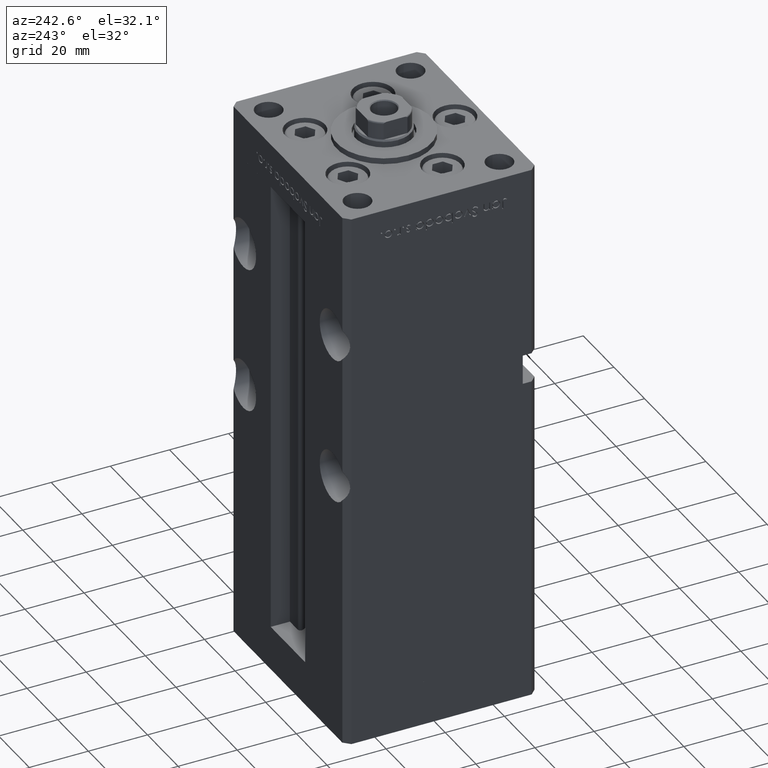
[diagram: clean part render]
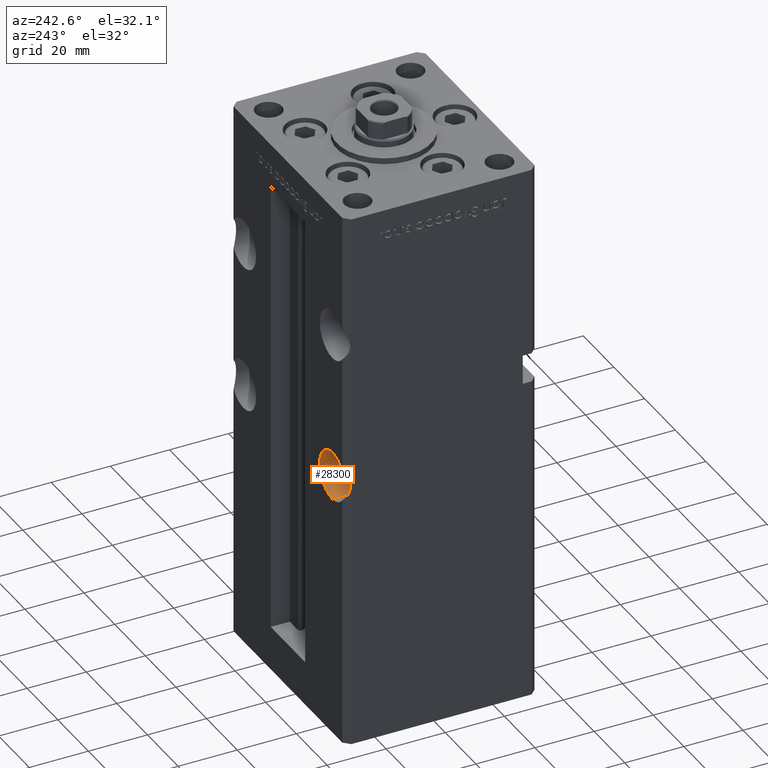
[diagram: same view with one face highlighted and labeled with its STEP entity id]
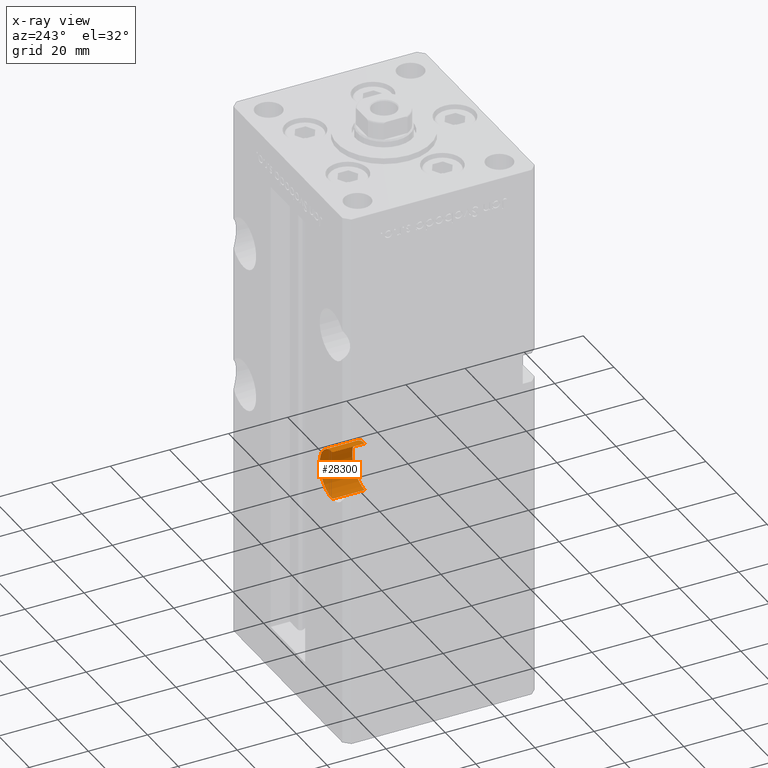
[diagram: x-ray of the same camera — body ghosted, the highlighted face saturated]
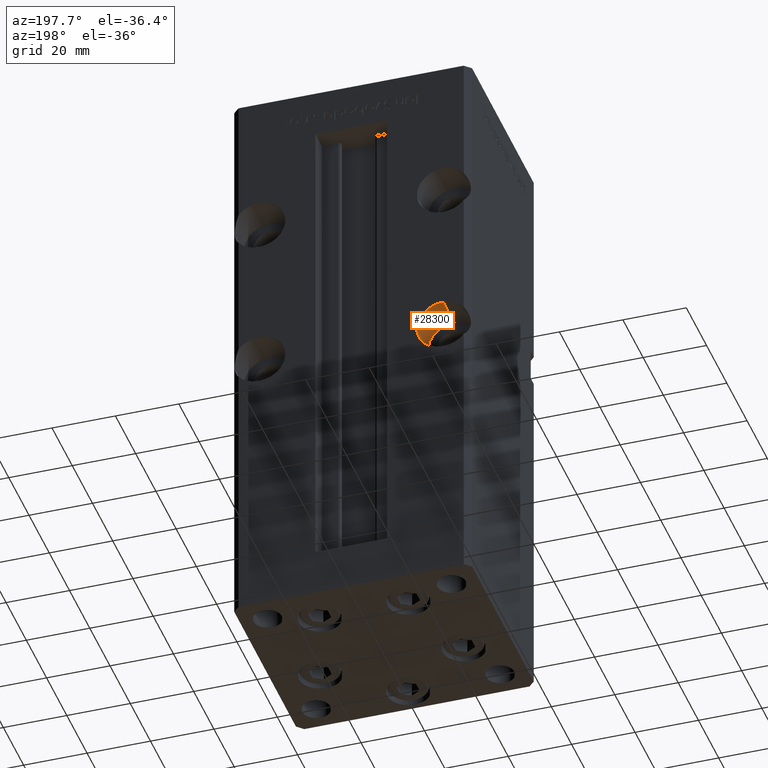
[diagram: same view with one face highlighted and labeled with its STEP entity id]
A machine part, auxiliary view. The second image highlights one B-rep face of the part: STEP entity #28300.
The next image is the same camera in x-ray: the body ghosted, the highlighted face saturated — about 0% of this face is hidden behind the body in this view.
A second angle (auxiliary view) of the same face is appended — the face is thin or edge-on in the first view.
In plain terms, the highlighted cylindrical surface (edge-blend (fillet) strip) has radius 8.25 mm, axis along (0, 1, 0).
Its self-contained STEP definition (entity closure, byte-faithful):
#1055 = CARTESIAN_POINT ( 'NONE',  ( -28.99999999999999645, 32.50000000000000000, 67.75000000000000000 ) ) ;
#1241 = CARTESIAN_POINT ( 'NONE',  ( -28.99999999999999645, 21.50000000000000000, 67.75000000000000000 ) ) ;
#2770 = DIRECTION ( 'NONE',  ( -0.000000000000000000, 1.000000000000000000, -0.000000000000000000 ) ) ;
#3350 = ORIENTED_EDGE ( 'NONE', *, *, #31624, .T. ) ;
#4675 = DIRECTION ( 'NONE',  ( 0.000000000000000000, 0.000000000000000000, 1.000000000000000000 ) ) ;
#5164 = VECTOR ( 'NONE', #31665, 1000.000000000000000 ) ;
#5603 = ORIENTED_EDGE ( 'NONE', *, *, #42250, .F. ) ;
#6213 = VERTEX_POINT ( 'NONE', #45003 ) ;
#9268 = AXIS2_PLACEMENT_3D ( 'NONE', #25643, #13012, #4675 ) ;
#9997 = AXIS2_PLACEMENT_3D ( 'NONE', #31500, #2770, #31774 ) ;
#10166 = CARTESIAN_POINT ( 'NONE',  ( -28.99999999999999645, 21.50000000000000000, 84.25000000000001421 ) ) ;
#10434 = LINE ( 'NONE', #10166, #46212 ) ;
#13012 = DIRECTION ( 'NONE',  ( 0.000000000000000000, 1.000000000000000000, 0.000000000000000000 ) ) ;
#13072 = ORIENTED_EDGE ( 'NONE', *, *, #14806, .F. ) ;
#14442 = VERTEX_POINT ( 'NONE', #14722 ) ;
#14722 = CARTESIAN_POINT ( 'NONE',  ( -28.99999999999999645, 32.50000000000000000, 84.25000000000001421 ) ) ;
#14806 = EDGE_CURVE ( 'NONE', #6213, #20546, #35527, .T. ) ;
#16526 = DIRECTION ( 'NONE',  ( 0.000000000000000000, 1.000000000000000000, 0.000000000000000000 ) ) ;
#20546 = VERTEX_POINT ( 'NONE', #1241 ) ;
#23204 = CYLINDRICAL_SURFACE ( 'NONE', #9997, 8.250000000000007105 ) ;
#24862 = VERTEX_POINT ( 'NONE', #1055 ) ;
#25643 = CARTESIAN_POINT ( 'NONE',  ( -28.99999999999999645, 32.50000000000000000, 76.00000000000001421 ) ) ;
#26225 = ORIENTED_EDGE ( 'NONE', *, *, #31317, .T. ) ;
#26894 = EDGE_LOOP ( 'NONE', ( #5603, #13072, #3350, #26225 ) ) ;
#28300 = ADVANCED_FACE ( 'NONE', ( #51708 ), #23204, .F. ) ;
#30331 = DIRECTION ( 'NONE',  ( -0.000000000000000000, 1.000000000000000000, -0.000000000000000000 ) ) ;
#31317 = EDGE_CURVE ( 'NONE', #14442, #24862, #35011, .T. ) ;
#31500 = CARTESIAN_POINT ( 'NONE',  ( -28.99999999999999645, 21.50000000000000000, 76.00000000000001421 ) ) ;
#31624 = EDGE_CURVE ( 'NONE', #6213, #14442, #10434, .T. ) ;
#31665 = DIRECTION ( 'NONE',  ( -0.000000000000000000, 1.000000000000000000, -0.000000000000000000 ) ) ;
#31774 = DIRECTION ( 'NONE',  ( 0.000000000000000000, 0.000000000000000000, 1.000000000000000000 ) ) ;
#32098 = CARTESIAN_POINT ( 'NONE',  ( -28.99999999999999645, 21.50000000000000000, 76.00000000000001421 ) ) ;
#35011 = CIRCLE ( 'NONE', #9268, 8.250000000000007105 ) ;
#35527 = CIRCLE ( 'NONE', #48395, 8.250000000000007105 ) ;
#40259 = LINE ( 'NONE', #52654, #5164 ) ;
#42250 = EDGE_CURVE ( 'NONE', #20546, #24862, #40259, .T. ) ;
#44762 = DIRECTION ( 'NONE',  ( 0.000000000000000000, 0.000000000000000000, 1.000000000000000000 ) ) ;
#45003 = CARTESIAN_POINT ( 'NONE',  ( -28.99999999999999645, 21.50000000000000000, 84.25000000000001421 ) ) ;
#46212 = VECTOR ( 'NONE', #30331, 1000.000000000000000 ) ;
#48395 = AXIS2_PLACEMENT_3D ( 'NONE', #32098, #16526, #44762 ) ;
#51708 = FACE_OUTER_BOUND ( 'NONE', #26894, .T. ) ;
#52654 = CARTESIAN_POINT ( 'NONE',  ( -28.99999999999999645, 21.50000000000000000, 67.75000000000000000 ) ) ;